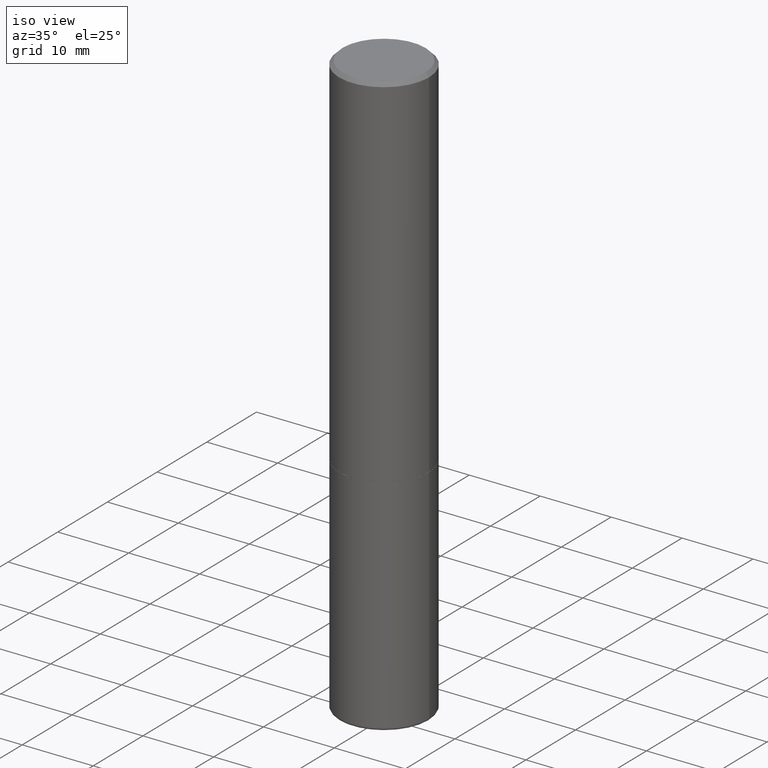
[diagram: clean part render]
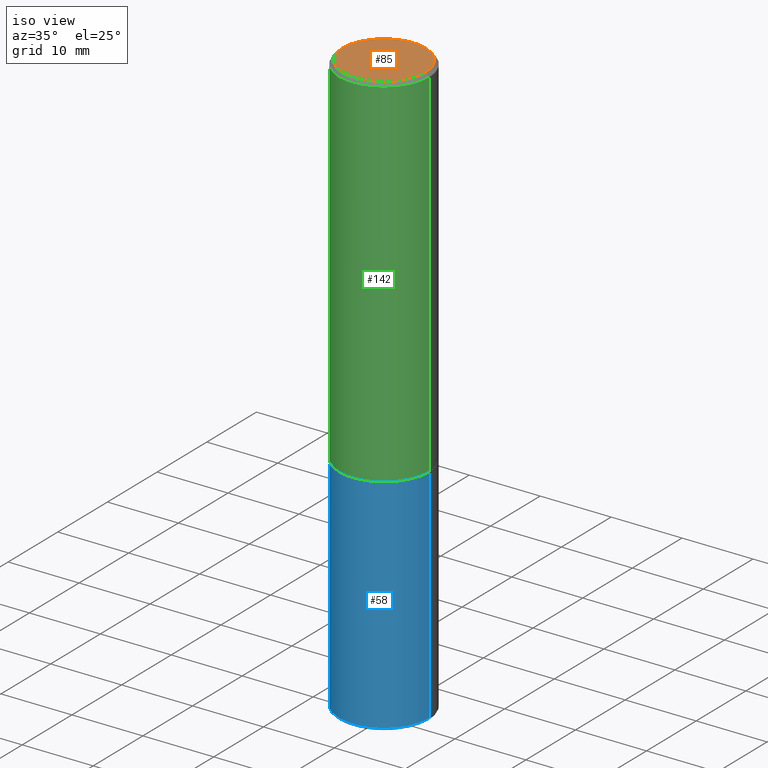
[diagram: same view with three faces highlighted in distinct colors, each labeled with its STEP entity id]
A machine part, iso view with three faces highlighted in distinct colors.
Their STEP definitions:

[orange] entity #85 — the highlighted planar face has unit normal (0, -0, -1).
#13 = DIRECTION ( 'NONE',  ( -2.445468806185136597E-29, 3.491481338843145583E-15, 1.000000000000000000 ) ) ;
#36 = EDGE_CURVE ( 'NONE', #253, #110, #388, .T. ) ;
#41 = CARTESIAN_POINT ( 'NONE',  ( -1.043851414335219407E-44, 1.490343170380446839E-30, 4.268512490100409923E-16 ) ) ;
#85 = ADVANCED_FACE ( 'NONE', ( #115 ), #244, .F. ) ;
#89 = DIRECTION ( 'NONE',  ( 1.000000000000000000, -6.982962677686266711E-15, 4.879110437680785527E-29 ) ) ;
#110 = VERTEX_POINT ( 'NONE', #255 ) ;
#115 = FACE_OUTER_BOUND ( 'NONE', #316, .T. ) ;
#130 = AXIS2_PLACEMENT_3D ( 'NONE', #41, #13, #360 ) ;
#135 = ORIENTED_EDGE ( 'NONE', *, *, #36, .T. ) ;
#177 = DIRECTION ( 'NONE',  ( -2.445468806185136597E-29, 3.491481338843145583E-15, 1.000000000000000000 ) ) ;
#182 = AXIS2_PLACEMENT_3D ( 'NONE', #246, #177, #89 ) ;
#227 = EDGE_CURVE ( 'NONE', #110, #253, #291, .T. ) ;
#244 = PLANE ( 'NONE',  #256 ) ;
#246 = CARTESIAN_POINT ( 'NONE',  ( -1.043851414335219407E-44, 1.490343170380446839E-30, 4.268512490100409923E-16 ) ) ;
#253 = VERTEX_POINT ( 'NONE', #340 ) ;
#255 = CARTESIAN_POINT ( 'NONE',  ( -0.2299999999999995381, 1.640996229256271139E-15, 4.268512490100296524E-16 ) ) ;
#256 = AXIS2_PLACEMENT_3D ( 'NONE', #349, #319, #411 ) ;
#264 = ORIENTED_EDGE ( 'NONE', *, *, #227, .T. ) ;
#291 = CIRCLE ( 'NONE', #130, 0.2299999999999995381 ) ;
#316 = EDGE_LOOP ( 'NONE', ( #264, #135 ) ) ;
#319 = DIRECTION ( 'NONE',  ( 2.438088387897960049E-29, -3.491481338843145188E-15, -1.000000000000000000 ) ) ;
#340 = CARTESIAN_POINT ( 'NONE',  ( 0.2299999999999995381, -1.681434332853596842E-15, 4.268512490100525294E-16 ) ) ;
#349 = CARTESIAN_POINT ( 'NONE',  ( 1.606081415867837912E-15, 0.2299999999999995381, -5.896150834289013687E-16 ) ) ;
#360 = DIRECTION ( 'NONE',  ( 1.000000000000000000, -6.982962677686266711E-15, 4.879110437680785527E-29 ) ) ;
#388 = CIRCLE ( 'NONE', #182, 0.2299999999999995381 ) ;
#411 = DIRECTION ( 'NONE',  ( -1.000000000000000000, 6.982962677686265922E-15, -4.876176775795935793E-29 ) ) ;

[blue] entity #58 — the highlighted cylindrical surface (partial cylindrical patch) has radius 6.35 mm, axis along (-0, 0, 1).
#11 = EDGE_CURVE ( 'NONE', #336, #150, #337, .T. ) ;
#27 = CIRCLE ( 'NONE', #377, 0.2500000000000000000 ) ;
#49 = DIRECTION ( 'NONE',  ( 1.000000000000000000, -6.982962677686270655E-15, 0.000000000000000000 ) ) ;
#53 = CARTESIAN_POINT ( 'NONE',  ( 0.000000000000000000, 0.000000000000000000, 0.000000000000000000 ) ) ;
#57 = DIRECTION ( 'NONE',  ( 1.000000000000000000, -6.982962677686266711E-15, 0.000000000000000000 ) ) ;
#58 = ADVANCED_FACE ( 'NONE', ( #215 ), #374, .T. ) ;
#76 = CARTESIAN_POINT ( 'NONE',  ( 0.2500000000000000000, -8.728703347107858632E-15, -2.000000000000000444 ) ) ;
#82 = ORIENTED_EDGE ( 'NONE', *, *, #305, .F. ) ;
#87 = VECTOR ( 'NONE', #333, 39.37007874015748143 ) ;
#104 = LINE ( 'NONE', #133, #87 ) ;
#106 = AXIS2_PLACEMENT_3D ( 'NONE', #178, #343, #49 ) ;
#120 = EDGE_CURVE ( 'NONE', #336, #132, #194, .T. ) ;
#122 = ORIENTED_EDGE ( 'NONE', *, *, #354, .T. ) ;
#132 = VERTEX_POINT ( 'NONE', #205 ) ;
#133 = CARTESIAN_POINT ( 'NONE',  ( 0.2500000000000000000, -1.745740669421566678E-15, 1.219044193948983948E-29 ) ) ;
#150 = VERTEX_POINT ( 'NONE', #304 ) ;
#161 = CARTESIAN_POINT ( 'NONE',  ( -0.2500000000000000000, 1.776356839400250465E-15, -1.229733772563726445E-29 ) ) ;
#168 = VERTEX_POINT ( 'NONE', #76 ) ;
#178 = CARTESIAN_POINT ( 'NONE',  ( 7.911091588008916622E-29, -1.129494213115757616E-14, -3.234999999999999876 ) ) ;
#180 = EDGE_LOOP ( 'NONE', ( #309, #228, #122, #82 ) ) ;
#194 = LINE ( 'NONE', #161, #417 ) ;
#205 = CARTESIAN_POINT ( 'NONE',  ( -0.2500000000000000000, -7.362595565021682805E-15, -2.000000000000000444 ) ) ;
#215 = FACE_OUTER_BOUND ( 'NONE', #180, .T. ) ;
#228 = ORIENTED_EDGE ( 'NONE', *, *, #11, .T. ) ;
#229 = AXIS2_PLACEMENT_3D ( 'NONE', #53, #353, #412 ) ;
#288 = DIRECTION ( 'NONE',  ( -2.445468806185136877E-29, 3.491481338843145188E-15, 1.000000000000000000 ) ) ;
#304 = CARTESIAN_POINT ( 'NONE',  ( 0.2500000000000002220, -1.304068280057914284E-14, -3.234999999999999876 ) ) ;
#305 = EDGE_CURVE ( 'NONE', #132, #168, #27, .T. ) ;
#309 = ORIENTED_EDGE ( 'NONE', *, *, #120, .F. ) ;
#321 = CARTESIAN_POINT ( 'NONE',  ( -0.2500000000000002220, -9.518585291757322543E-15, -3.234999999999999876 ) ) ;
#333 = DIRECTION ( 'NONE',  ( -2.445468806185136877E-29, 3.491481338843145188E-15, 1.000000000000000000 ) ) ;
#336 = VERTEX_POINT ( 'NONE', #321 ) ;
#337 = CIRCLE ( 'NONE', #106, 0.2500000000000000000 ) ;
#343 = DIRECTION ( 'NONE',  ( -2.445468806185136597E-29, 3.491481338843145583E-15, 1.000000000000000000 ) ) ;
#347 = DIRECTION ( 'NONE',  ( -2.445468806185136597E-29, 3.491481338843145583E-15, 1.000000000000000000 ) ) ;
#353 = DIRECTION ( 'NONE',  ( -2.445468806185136597E-29, 3.491481338843145583E-15, 1.000000000000000000 ) ) ;
#354 = EDGE_CURVE ( 'NONE', #150, #168, #104, .T. ) ;
#374 = CYLINDRICAL_SURFACE ( 'NONE', #229, 0.2500000000000000000 ) ;
#377 = AXIS2_PLACEMENT_3D ( 'NONE', #378, #347, #57 ) ;
#378 = CARTESIAN_POINT ( 'NONE',  ( 4.890937612370273754E-29, -6.982962677686291954E-15, -2.000000000000000444 ) ) ;
#412 = DIRECTION ( 'NONE',  ( 1.000000000000000000, -6.982962677686266711E-15, 4.876176775795935793E-29 ) ) ;
#417 = VECTOR ( 'NONE', #288, 39.37007874015748143 ) ;

[green] entity #142 — the highlighted cylindrical surface (partial cylindrical patch) has radius 6.35 mm, axis along (-0, 0, 1).
#2 = CARTESIAN_POINT ( 'NONE',  ( -0.2499999999999999722, 1.675911042644703182E-15, -0.02000000000000009409 ) ) ;
#37 = FACE_OUTER_BOUND ( 'NONE', #60, .T. ) ;
#60 = EDGE_LOOP ( 'NONE', ( #341, #141, #332, #386 ) ) ;
#70 = CARTESIAN_POINT ( 'NONE',  ( 0.2499999999999999722, -1.784954126219746189E-15, -0.02000000000000009409 ) ) ;
#74 = CYLINDRICAL_SURFACE ( 'NONE', #376, 0.2500000000000001110 ) ;
#95 = VECTOR ( 'NONE', #399, 39.37007874015748143 ) ;
#99 = VERTEX_POINT ( 'NONE', #2 ) ;
#105 = DIRECTION ( 'NONE',  ( 1.000000000000000000, -6.982962677686266711E-15, 0.000000000000000000 ) ) ;
#117 = VERTEX_POINT ( 'NONE', #70 ) ;
#131 = CARTESIAN_POINT ( 'NONE',  ( 4.888492143564088712E-29, -6.979471196347448158E-15, -1.999000000000000110 ) ) ;
#136 = DIRECTION ( 'NONE',  ( -2.445468806185136597E-29, 3.491481338843145583E-15, 1.000000000000000000 ) ) ;
#139 = DIRECTION ( 'NONE',  ( -2.445468806185136877E-29, 3.491481338843145188E-15, 1.000000000000000000 ) ) ;
#140 = CARTESIAN_POINT ( 'NONE',  ( 0.000000000000000000, 0.000000000000000000, 0.000000000000000000 ) ) ;
#141 = ORIENTED_EDGE ( 'NONE', *, *, #381, .T. ) ;
#142 = ADVANCED_FACE ( 'NONE', ( #37 ), #74, .T. ) ;
#158 = EDGE_CURVE ( 'NONE', #99, #117, #361, .T. ) ;
#164 = VERTEX_POINT ( 'NONE', #371 ) ;
#169 = LINE ( 'NONE', #329, #170 ) ;
#170 = VECTOR ( 'NONE', #139, 39.37007874015748143 ) ;
#197 = DIRECTION ( 'NONE',  ( 1.000000000000000000, -6.982962677686268288E-15, 0.000000000000000000 ) ) ;
#202 = LINE ( 'NONE', #208, #95 ) ;
#208 = CARTESIAN_POINT ( 'NONE',  ( -0.2500000000000001110, 1.776356839400251254E-15, -1.229733772563727006E-29 ) ) ;
#211 = CARTESIAN_POINT ( 'NONE',  ( 0.2500000000000002220, -8.725211865769017202E-15, -1.999000000000000110 ) ) ;
#218 = AXIS2_PLACEMENT_3D ( 'NONE', #266, #136, #105 ) ;
#231 = AXIS2_PLACEMENT_3D ( 'NONE', #131, #394, #197 ) ;
#232 = DIRECTION ( 'NONE',  ( -2.445468806185136597E-29, 3.491481338843145583E-15, 1.000000000000000000 ) ) ;
#261 = EDGE_CURVE ( 'NONE', #295, #117, #169, .T. ) ;
#266 = CARTESIAN_POINT ( 'NONE',  ( 4.890937612370296805E-31, -6.982962677686323656E-17, -0.02000000000000009409 ) ) ;
#295 = VERTEX_POINT ( 'NONE', #211 ) ;
#329 = CARTESIAN_POINT ( 'NONE',  ( 0.2500000000000001110, -1.745740669421567467E-15, 1.219044193948984509E-29 ) ) ;
#332 = ORIENTED_EDGE ( 'NONE', *, *, #261, .T. ) ;
#334 = DIRECTION ( 'NONE',  ( 1.000000000000000000, -6.982962677686266711E-15, 4.876176775795935793E-29 ) ) ;
#341 = ORIENTED_EDGE ( 'NONE', *, *, #363, .F. ) ;
#361 = CIRCLE ( 'NONE', #218, 0.2499999999999999722 ) ;
#363 = EDGE_CURVE ( 'NONE', #164, #99, #202, .T. ) ;
#370 = CIRCLE ( 'NONE', #231, 0.2500000000000002220 ) ;
#371 = CARTESIAN_POINT ( 'NONE',  ( -0.2500000000000002220, -1.748293572161903489E-15, -1.999000000000000110 ) ) ;
#376 = AXIS2_PLACEMENT_3D ( 'NONE', #140, #232, #334 ) ;
#381 = EDGE_CURVE ( 'NONE', #164, #295, #370, .T. ) ;
#386 = ORIENTED_EDGE ( 'NONE', *, *, #158, .F. ) ;
#394 = DIRECTION ( 'NONE',  ( -2.445468806185136597E-29, 3.491481338843145583E-15, 1.000000000000000000 ) ) ;
#399 = DIRECTION ( 'NONE',  ( -2.445468806185136877E-29, 3.491481338843145188E-15, 1.000000000000000000 ) ) ;